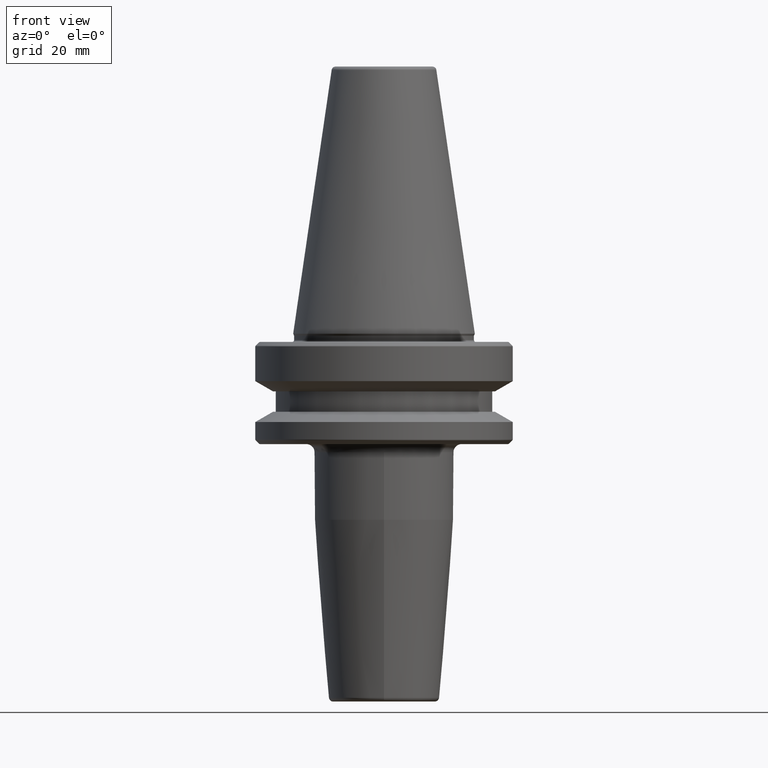
[diagram: clean part render]
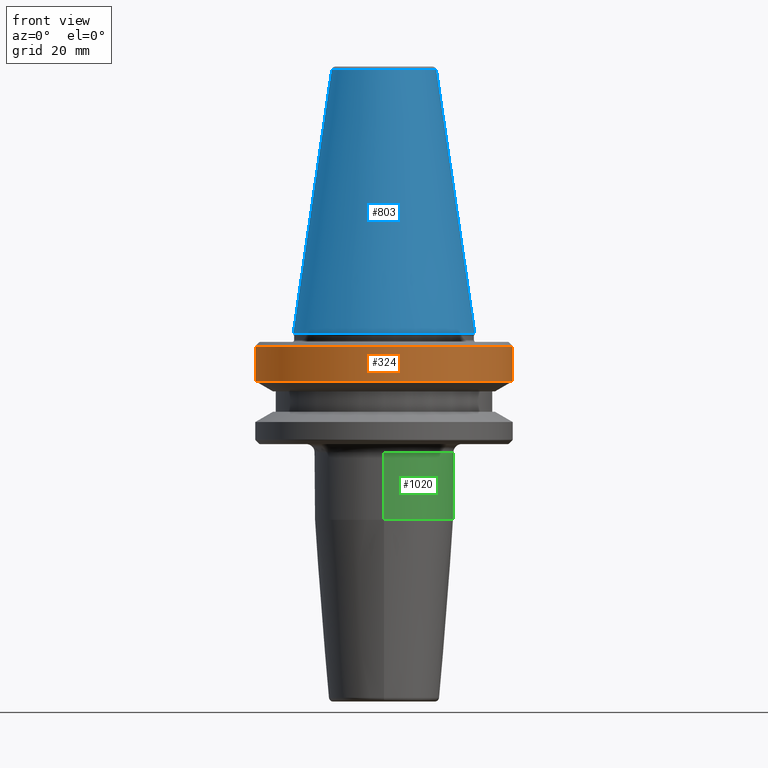
[diagram: same view with three faces highlighted in distinct colors, each labeled with its STEP entity id]
A machine part, front view with three faces highlighted in distinct colors.
Their STEP definitions:

[orange] entity #324 — the highlighted cylindrical surface (partial cylindrical patch) has radius 31.5 mm, axis along (-0, -0, 1).
#7 = CARTESIAN_POINT ( 'NONE',  ( 31.50000000000000000, 0.0000000000000000000, 69.75694866325665100 ) ) ;
#32 = AXIS2_PLACEMENT_3D ( 'NONE', #1226, #250, #36 ) ;
#36 = DIRECTION ( 'NONE',  ( 1.000000000000000000, 0.0000000000000000000, 0.0000000000000000000 ) ) ;
#81 = AXIS2_PLACEMENT_3D ( 'NONE', #983, #886, #303 ) ;
#83 = ORIENTED_EDGE ( 'NONE', *, *, #841, .T. ) ;
#88 = FACE_OUTER_BOUND ( 'NONE', #1186, .T. ) ;
#138 = VERTEX_POINT ( 'NONE', #366 ) ;
#143 = LINE ( 'NONE', #7, #634 ) ;
#164 = VERTEX_POINT ( 'NONE', #771 ) ;
#210 = CARTESIAN_POINT ( 'NONE',  ( 31.50000000000000000, 0.0000000000000000000, -11.59985799368323700 ) ) ;
#250 = DIRECTION ( 'NONE',  ( -0.0000000000000000000, -0.0000000000000000000, 1.000000000000000000 ) ) ;
#282 = VERTEX_POINT ( 'NONE', #210 ) ;
#294 = EDGE_CURVE ( 'NONE', #1148, #164, #925, .T. ) ;
#303 = DIRECTION ( 'NONE',  ( 1.000000000000000000, 0.0000000000000000000, 0.0000000000000000000 ) ) ;
#324 = ADVANCED_FACE ( 'NONE', ( #88 ), #328, .T. ) ;
#328 = CYLINDRICAL_SURFACE ( 'NONE', #329, 31.50000000000000000 ) ;
#329 = AXIS2_PLACEMENT_3D ( 'NONE', #1082, #409, #1172 ) ;
#366 = CARTESIAN_POINT ( 'NONE',  ( 31.49999999999999300, 0.0000000000000000000, -3.165685424949243700 ) ) ;
#386 = VECTOR ( 'NONE', #952, 1000.000000000000000 ) ;
#409 = DIRECTION ( 'NONE',  ( -0.0000000000000000000, -0.0000000000000000000, 1.000000000000000000 ) ) ;
#577 = ORIENTED_EDGE ( 'NONE', *, *, #294, .F. ) ;
#634 = VECTOR ( 'NONE', #696, 1000.000000000000000 ) ;
#696 = DIRECTION ( 'NONE',  ( -0.0000000000000000000, -0.0000000000000000000, 1.000000000000000000 ) ) ;
#716 = CARTESIAN_POINT ( 'NONE',  ( -31.50000000000000000, 3.857637417314162700E-015, -11.59985799368323700 ) ) ;
#731 = ORIENTED_EDGE ( 'NONE', *, *, #1171, .F. ) ;
#771 = CARTESIAN_POINT ( 'NONE',  ( -31.49999999999999300, 3.857637417314161900E-015, -3.165685424949243700 ) ) ;
#841 = EDGE_CURVE ( 'NONE', #1148, #282, #979, .T. ) ;
#874 = ORIENTED_EDGE ( 'NONE', *, *, #1202, .T. ) ;
#886 = DIRECTION ( 'NONE',  ( -0.0000000000000000000, -0.0000000000000000000, 1.000000000000000000 ) ) ;
#917 = CIRCLE ( 'NONE', #81, 31.49999999999999300 ) ;
#925 = LINE ( 'NONE', #1054, #386 ) ;
#952 = DIRECTION ( 'NONE',  ( -0.0000000000000000000, -0.0000000000000000000, 1.000000000000000000 ) ) ;
#979 = CIRCLE ( 'NONE', #32, 31.50000000000000000 ) ;
#983 = CARTESIAN_POINT ( 'NONE',  ( 0.0000000000000000000, 0.0000000000000000000, -3.165685424949243700 ) ) ;
#1054 = CARTESIAN_POINT ( 'NONE',  ( -31.50000000000000000, 3.857637417314162700E-015, 69.75694866325665100 ) ) ;
#1082 = CARTESIAN_POINT ( 'NONE',  ( 0.0000000000000000000, 0.0000000000000000000, 69.75694866325665100 ) ) ;
#1148 = VERTEX_POINT ( 'NONE', #716 ) ;
#1171 = EDGE_CURVE ( 'NONE', #164, #138, #917, .T. ) ;
#1172 = DIRECTION ( 'NONE',  ( 1.000000000000000000, 0.0000000000000000000, 0.0000000000000000000 ) ) ;
#1186 = EDGE_LOOP ( 'NONE', ( #577, #83, #874, #731 ) ) ;
#1202 = EDGE_CURVE ( 'NONE', #282, #138, #143, .T. ) ;
#1226 = CARTESIAN_POINT ( 'NONE',  ( 0.0000000000000000000, 0.0000000000000000000, -11.59985799368323700 ) ) ;

[blue] entity #803 — the highlighted conical surface has half-angle 8.297 deg.
#26 = EDGE_CURVE ( 'NONE', #534, #422, #682, .T. ) ;
#79 = CARTESIAN_POINT ( 'NONE',  ( 0.0000000000000000000, 0.0000000000000000000, 64.54430822726730800 ) ) ;
#80 = EDGE_LOOP ( 'NONE', ( #799, #1199, #241, #173 ) ) ;
#90 = CARTESIAN_POINT ( 'NONE',  ( 12.81219950706224800, 1.569041911636107800E-015, 64.54430822726730800 ) ) ;
#140 = CARTESIAN_POINT ( 'NONE',  ( 0.0000000000000000000, 0.0000000000000000000, 0.0000000000000000000 ) ) ;
#155 = DIRECTION ( 'NONE',  ( 1.000000000000000000, 0.0000000000000000000, 0.0000000000000000000 ) ) ;
#173 = ORIENTED_EDGE ( 'NONE', *, *, #815, .T. ) ;
#203 = CIRCLE ( 'NONE', #1038, 22.22500000000000500 ) ;
#214 = AXIS2_PLACEMENT_3D ( 'NONE', #79, #958, #477 ) ;
#241 = ORIENTED_EDGE ( 'NONE', *, *, #965, .T. ) ;
#267 = DIRECTION ( 'NONE',  ( 0.0000000000000000000, 0.0000000000000000000, -1.000000000000000000 ) ) ;
#309 = DIRECTION ( 'NONE',  ( 0.1443082272673071000, 1.767266086135364600E-017, -0.9895327864921743500 ) ) ;
#336 = DIRECTION ( 'NONE',  ( -0.0000000000000000000, -0.0000000000000000000, 1.000000000000000000 ) ) ;
#413 = CARTESIAN_POINT ( 'NONE',  ( -12.81219950706224800, 0.0000000000000000000, 64.54430822726730800 ) ) ;
#418 = CARTESIAN_POINT ( 'NONE',  ( -12.81219950706224800, 0.0000000000000000000, 64.54430822726730800 ) ) ;
#422 = VERTEX_POINT ( 'NONE', #1033 ) ;
#477 = DIRECTION ( 'NONE',  ( 1.000000000000000000, 0.0000000000000000000, 0.0000000000000000000 ) ) ;
#534 = VERTEX_POINT ( 'NONE', #1161 ) ;
#554 = DIRECTION ( 'NONE',  ( -1.000000000000000000, 0.0000000000000000000, 0.0000000000000000000 ) ) ;
#575 = VECTOR ( 'NONE', #1072, 1000.000000000000000 ) ;
#580 = VERTEX_POINT ( 'NONE', #413 ) ;
#682 = LINE ( 'NONE', #90, #878 ) ;
#799 = ORIENTED_EDGE ( 'NONE', *, *, #26, .F. ) ;
#803 = ADVANCED_FACE ( 'NONE', ( #1010 ), #1220, .T. ) ;
#815 = EDGE_CURVE ( 'NONE', #830, #422, #203, .T. ) ;
#825 = LINE ( 'NONE', #418, #575 ) ;
#830 = VERTEX_POINT ( 'NONE', #1253 ) ;
#852 = CIRCLE ( 'NONE', #214, 12.81219950706224800 ) ;
#878 = VECTOR ( 'NONE', #309, 1000.000000000000000 ) ;
#915 = AXIS2_PLACEMENT_3D ( 'NONE', #1106, #267, #554 ) ;
#958 = DIRECTION ( 'NONE',  ( -0.0000000000000000000, -0.0000000000000000000, 1.000000000000000000 ) ) ;
#965 = EDGE_CURVE ( 'NONE', #580, #830, #825, .T. ) ;
#1010 = FACE_OUTER_BOUND ( 'NONE', #80, .T. ) ;
#1033 = CARTESIAN_POINT ( 'NONE',  ( 22.22500000000000500, 0.0000000000000000000, 0.0000000000000000000 ) ) ;
#1038 = AXIS2_PLACEMENT_3D ( 'NONE', #140, #336, #155 ) ;
#1068 = EDGE_CURVE ( 'NONE', #580, #534, #852, .T. ) ;
#1072 = DIRECTION ( 'NONE',  ( -0.1443082272673071000, 0.0000000000000000000, -0.9895327864921743500 ) ) ;
#1106 = CARTESIAN_POINT ( 'NONE',  ( 0.0000000000000000000, 0.0000000000000000000, 64.54430822726730800 ) ) ;
#1161 = CARTESIAN_POINT ( 'NONE',  ( 12.81219950706224800, 2.145409711370550300E-015, 64.54430822726730800 ) ) ;
#1199 = ORIENTED_EDGE ( 'NONE', *, *, #1068, .F. ) ;
#1220 = CONICAL_SURFACE ( 'NONE', #915, 12.81219950706224800, 0.1448138465474191100 ) ;
#1253 = CARTESIAN_POINT ( 'NONE',  ( -22.22500000000000500, 2.721777511104993200E-015, 0.0000000000000000000 ) ) ;

[green] entity #1020 — the highlighted cylindrical surface (partial cylindrical patch) has radius 17 mm, axis along (-0, 0, -1).
#4 = VECTOR ( 'NONE', #135, 1000.000000000000000 ) ;
#11 = AXIS2_PLACEMENT_3D ( 'NONE', #974, #300, #95 ) ;
#39 = ORIENTED_EDGE ( 'NONE', *, *, #557, .T. ) ;
#78 = CARTESIAN_POINT ( 'NONE',  ( 0.0000000000000000000, 4.322019616789088000E-016, -45.52828342338439400 ) ) ;
#92 = VERTEX_POINT ( 'NONE', #272 ) ;
#95 = DIRECTION ( 'NONE',  ( 0.0000000000000000000, 1.000000000000000000, 0.0000000000000000000 ) ) ;
#107 = ORIENTED_EDGE ( 'NONE', *, *, #526, .F. ) ;
#127 = EDGE_CURVE ( 'NONE', #92, #928, #1036, .T. ) ;
#135 = DIRECTION ( 'NONE',  ( -0.0000000000000000000, 2.332660569804487100E-017, -1.000000000000000000 ) ) ;
#141 = VECTOR ( 'NONE', #1183, 1000.000000000000000 ) ;
#157 = CARTESIAN_POINT ( 'NONE',  ( 17.00000000000000000, 2.251017449861325500E-015, -29.00000000000000400 ) ) ;
#235 = CARTESIAN_POINT ( 'NONE',  ( 0.0000000000000000000, 4.665321139608974800E-017, -29.00000000000000400 ) ) ;
#260 = CIRCLE ( 'NONE', #582, 17.00000000000000000 ) ;
#272 = CARTESIAN_POINT ( 'NONE',  ( 0.0000000000000000000, 17.00000000000000000, -29.00000000000000400 ) ) ;
#300 = DIRECTION ( 'NONE',  ( -0.0000000000000000000, 2.332660569804487100E-017, -1.000000000000000000 ) ) ;
#338 = AXIS2_PLACEMENT_3D ( 'NONE', #78, #947, #859 ) ;
#377 = DIRECTION ( 'NONE',  ( 0.0000000000000000000, 0.0000000000000000000, -1.000000000000000000 ) ) ;
#379 = CARTESIAN_POINT ( 'NONE',  ( 2.081899558550500700E-015, 17.00000000000000000, -45.52828342338439400 ) ) ;
#397 = CIRCLE ( 'NONE', #338, 17.00000000000000000 ) ;
#434 = DIRECTION ( 'NONE',  ( 0.0000000000000000000, 0.0000000000000000000, -1.000000000000000000 ) ) ;
#444 = CARTESIAN_POINT ( 'NONE',  ( 0.0000000000000000000, 17.00000000000000000, -90.00000000000000000 ) ) ;
#526 = EDGE_CURVE ( 'NONE', #928, #1089, #397, .T. ) ;
#538 = DIRECTION ( 'NONE',  ( -1.000000000000000000, 0.0000000000000000000, 0.0000000000000000000 ) ) ;
#557 = EDGE_CURVE ( 'NONE', #92, #973, #1217, .T. ) ;
#581 = CARTESIAN_POINT ( 'NONE',  ( 0.0000000000000000000, -17.00000000000000000, -45.52828342338439400 ) ) ;
#582 = AXIS2_PLACEMENT_3D ( 'NONE', #235, #434, #538 ) ;
#591 = ORIENTED_EDGE ( 'NONE', *, *, #127, .F. ) ;
#638 = VERTEX_POINT ( 'NONE', #664 ) ;
#664 = CARTESIAN_POINT ( 'NONE',  ( 2.081899558550500300E-015, -17.00000000000000000, -29.00000000000000400 ) ) ;
#670 = ORIENTED_EDGE ( 'NONE', *, *, #777, .T. ) ;
#734 = AXIS2_PLACEMENT_3D ( 'NONE', #781, #377, #756 ) ;
#741 = CYLINDRICAL_SURFACE ( 'NONE', #11, 17.00000000000000000 ) ;
#756 = DIRECTION ( 'NONE',  ( -1.000000000000000000, 0.0000000000000000000, 0.0000000000000000000 ) ) ;
#769 = FACE_OUTER_BOUND ( 'NONE', #985, .T. ) ;
#777 = EDGE_CURVE ( 'NONE', #973, #638, #260, .T. ) ;
#781 = CARTESIAN_POINT ( 'NONE',  ( 0.0000000000000000000, 4.665321139608974800E-017, -29.00000000000000400 ) ) ;
#859 = DIRECTION ( 'NONE',  ( 0.0000000000000000000, 1.000000000000000000, 0.0000000000000000000 ) ) ;
#907 = EDGE_CURVE ( 'NONE', #638, #1089, #1180, .T. ) ;
#928 = VERTEX_POINT ( 'NONE', #379 ) ;
#947 = DIRECTION ( 'NONE',  ( -0.0000000000000000000, 2.332660569804487100E-017, -1.000000000000000000 ) ) ;
#973 = VERTEX_POINT ( 'NONE', #157 ) ;
#974 = CARTESIAN_POINT ( 'NONE',  ( 0.0000000000000000000, 1.469576158976826700E-015, -90.00000000000000000 ) ) ;
#985 = EDGE_LOOP ( 'NONE', ( #39, #670, #1185, #107, #591 ) ) ;
#1020 = ADVANCED_FACE ( 'NONE', ( #769 ), #741, .T. ) ;
#1036 = LINE ( 'NONE', #444, #4 ) ;
#1089 = VERTEX_POINT ( 'NONE', #581 ) ;
#1102 = CARTESIAN_POINT ( 'NONE',  ( 2.081899558550500300E-015, -17.00000000000000000, -90.00000000000000000 ) ) ;
#1180 = LINE ( 'NONE', #1102, #141 ) ;
#1183 = DIRECTION ( 'NONE',  ( -0.0000000000000000000, 2.332660569804487100E-017, -1.000000000000000000 ) ) ;
#1185 = ORIENTED_EDGE ( 'NONE', *, *, #907, .T. ) ;
#1217 = CIRCLE ( 'NONE', #734, 17.00000000000000000 ) ;